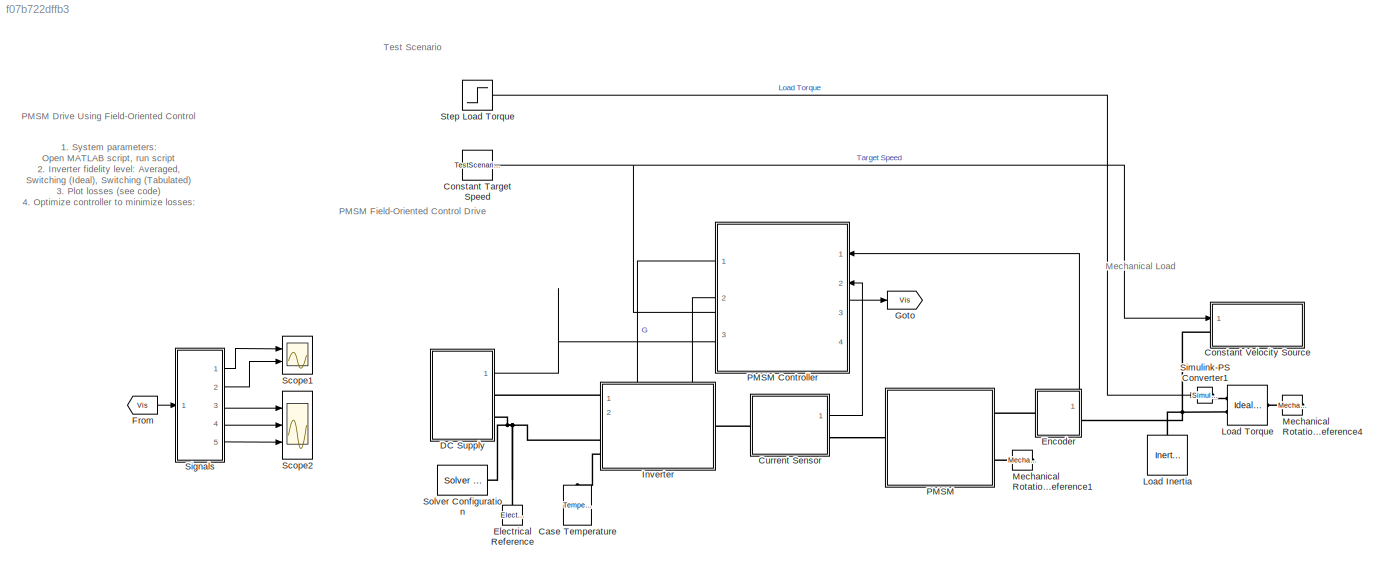
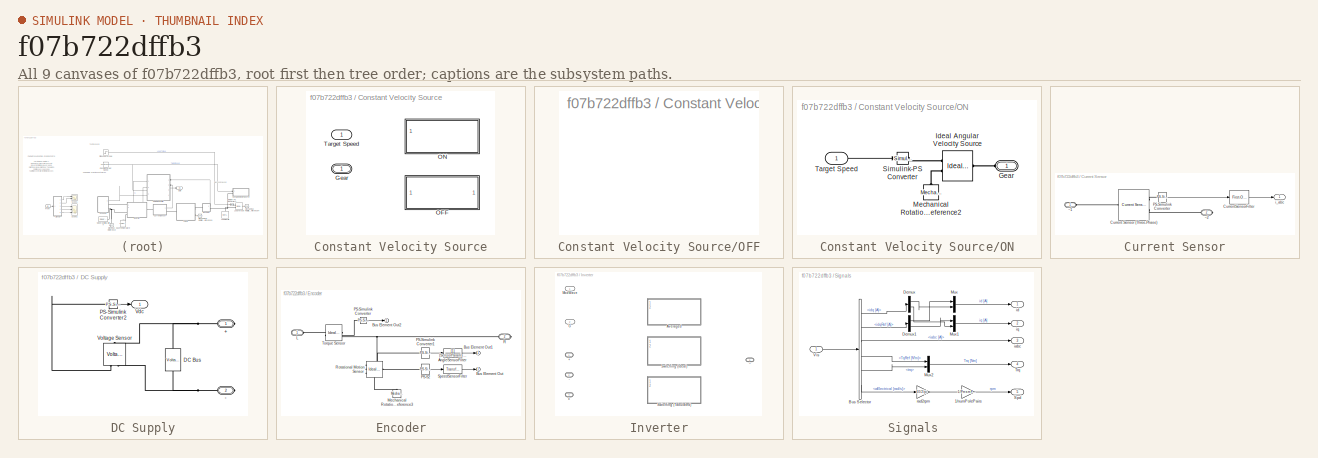
[diagram: thumbnail index - all 9 canvases of the model, root first then tree order]
MODEL slx_f07b722dffb3
KIND model
CONFIG AbsTol = 1e-3
CONFIG EnableMultiTasking = on
CONFIG FixedStep = auto
CONFIG MaxStep = 1e-3
CONFIG MinStep = auto
CONFIG PreLoadFcn = SystemParams;
CONFIG RelTol = 1e-3
CONFIG SampleTimeConstraint = Unconstrained
CONFIG SolverName = daessc
CONFIG StartTime = 0.0
CONFIG StopFcn = ee_addSimlogTimeStamp(bdroot)
CONFIG StopTime = 0.2
BLOCK [Reference] Case Temperature  REF=fl_lib/Thermal/Thermal Sources/Temperature Source
  NameLocation = right
  Ports = [0, 0, 0, 0, 0, 1]
  SourceBlock = fl_lib/Thermal/Thermal Sources/Temperature Source
  SourceProductBaseCode = SS
  SourceType = Temperature Source
BLOCK [Constant] Constant Target Speed
  SampleTime = ControllerParams.SampleTime
  Value = TestScenarioParams.RotorSpeedRef_rpm
BLOCK [SubSystem] Constant Velocity Source
  LabelModeActiveChoice = OFF
  Ports = [1, 0, 0, 0, 0, 1]
  RequestExecContextInheritance = off
  Variant = on
  VariantControlMode = label
BLOCK [PMIOPort] Constant Velocity Source/Gear
  Side = Left
BLOCK [SubSystem] Constant Velocity Source/OFF
  Ports = []
  RequestExecContextInheritance = off
  VariantControl = OFF
BLOCK [SubSystem] Constant Velocity Source/ON
  Ports = [1, 0, 0, 0, 0, 1]
  RequestExecContextInheritance = off
  VariantControl = ON
BLOCK [PMIOPort] Constant Velocity Source/ON/Gear
  Side = Left
BLOCK [Reference] Constant Velocity Source/ON/Ideal Angular Velocity Source  REF=fl_lib/Mechanical/Mechanical Sources/Ideal Angular
Velocity Source
  Ports = [0, 0, 0, 0, 0, 1, 2]
  SourceBlock = fl_lib/Mechanical/Mechanical Sources/Ideal Angular\nVelocity Source
  SourceProductBaseCode = SS
  SourceType = Ideal Angular\nVelocity Source
BLOCK [Reference] Constant Velocity Source/ON/Mechanical Rotational Reference2  REF=fl_lib/Mechanical/Rotational Elements/Mechanical
Rotational Reference
  NameLocation = right
  Ports = [0, 0, 0, 0, 0, 1]
  SourceBlock = fl_lib/Mechanical/Rotational Elements/Mechanical\nRotational Reference
  SourceProductBaseCode = SS
  SourceType = Mechanical\nRotational Reference
BLOCK [Reference] Constant Velocity Source/ON/Simulink-PS Converter  REF=nesl_utility/Simulink-PS
Converter
  Ports = [1, 0, 0, 0, 0, 0, 1]
  SourceBlock = nesl_utility/Simulink-PS\nConverter
  SourceProductBaseCode = PW,SS
  SourceType = Simulink-PS\nConverter
BLOCK [Inport] Constant Velocity Source/ON/Target Speed
BLOCK [Inport] Constant Velocity Source/Target Speed
BLOCK [SubSystem] Current Sensor
  Ports = [0, 1, 0, 0, 0, 1, 1]
  RequestExecContextInheritance = off
BLOCK [Reference] Current Sensor/Current Sensor (Three-Phase)  REF=ee_lib/Sensors &
Transducers/Current Sensor
(Three-Phase)
  Ports = [0, 0, 0, 0, 0, 1, 2]
  SourceBlock = ee_lib/Sensors &\nTransducers/Current Sensor\n(Three-Phase)
  SourceProductBaseCode = PS
  SourceType = Current Sensor\n(Three-Phase)
BLOCK [Reference] Current Sensor/CurrentSensorFilter  REF=spsFirstOrderFilterLib/First-Order
Filter
  Ports = [1, 1]
  SourceBlock = spsFirstOrderFilterLib/First-Order\nFilter
  SourceProductBaseCode = PS
  SourceType = First-Order Filter
BLOCK [Reference] Current Sensor/PS-Simulink Converter  REF=nesl_utility/PS-Simulink
Converter
  Ports = [0, 1, 0, 0, 0, 1]
  SourceBlock = nesl_utility/PS-Simulink\nConverter
  SourceProductBaseCode = PW,SS
  SourceType = PS-Simulink\nConverter
BLOCK [Outport] Current Sensor/i_abc
BLOCK [PMIOPort] Current Sensor/~1
  NameLocation = top
  Side = Left
BLOCK [PMIOPort] Current Sensor/~2
  Port = 2
  Side = Right
BLOCK [SubSystem] DC Supply
  Ports = [0, 1, 0, 0, 0, 0, 2]
  RequestExecContextInheritance = off
BLOCK [PMIOPort] DC Supply/+
  Side = Right
BLOCK [PMIOPort] DC Supply/-
  Port = 2
  Side = Right
BLOCK [Reference] DC Supply/DC Bus  REF=ee_lib/Sources/Voltage Source
  NameLocation = right
  Ports = [0, 0, 0, 0, 0, 1, 1]
  SourceBlock = ee_lib/Sources/Voltage Source
  SourceProductBaseCode = PS
  SourceType = Voltage Source
BLOCK [Reference] DC Supply/PS-Simulink Converter2  REF=nesl_utility/PS-Simulink
Converter
  AttributesFormatString = %<Unit>
  Ports = [0, 1, 0, 0, 0, 1]
  SourceBlock = nesl_utility/PS-Simulink\nConverter
  SourceProductBaseCode = PW,SS
  SourceType = PS-Simulink\nConverter
BLOCK [Outport] DC Supply/Vdc
BLOCK [Reference] DC Supply/Voltage Sensor  REF=fl_lib/Electrical/Electrical Sensors/Voltage Sensor
  NameLocation = left
  Ports = [0, 0, 0, 0, 0, 1, 2]
  SourceBlock = fl_lib/Electrical/Electrical Sensors/Voltage Sensor
  SourceProductBaseCode = SS
  SourceType = Voltage Sensor
BLOCK [Reference] Electrical Reference  REF=fl_lib/Electrical/Electrical Elements/Electrical Reference
  NameLocation = right
  Ports = [0, 0, 0, 0, 0, 1]
  SourceBlock = fl_lib/Electrical/Electrical Elements/Electrical Reference
  SourceProductBaseCode = SS
  SourceType = Electrical Reference
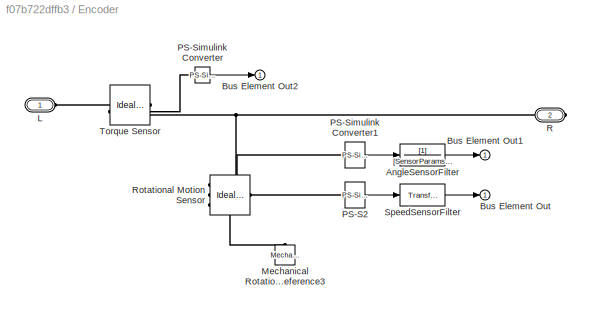
BLOCK [SubSystem] Encoder
  PortSchema = {"entries":[{"content":{"sides":[{"content":{"connectorIds":["LConn1"]},"type":"ConnectorPlacement.EquallySpacedRectSide","uuid":"cfad22f7-4ca5-4e38-a161-f69c3faf7447"},{"content":{"connectorIds":["RConn1"],"side":"RIGHT"},"type":"ConnectorPlacement.EquallySpacedRectSide","uuid":"720e2ecf-f383-4111-97af-41d99d9b093d"},{"content":{"connectorIds":["Out1"],"side":"TOP"},"type":"ConnectorPlacement.Equ...<+251ch>
  Ports = [0, 1, 0, 0, 0, 1, 1]
  RequestExecContextInheritance = off
BLOCK [TransferFcn] Encoder/AngleSensorFilter
  Denominator = [SensorParams.PositionSensor.TimeConstant  1]
BLOCK [Outport] Encoder/Bus Element Out
  AttributesFormatString = %<Unit>
BLOCK [Outport] Encoder/Bus Element Out1
  AttributesFormatString = %<Unit>
BLOCK [Outport] Encoder/Bus Element Out2
  AttributesFormatString = %<Unit>
BLOCK [PMIOPort] Encoder/L
  Side = Left
BLOCK [Reference] Encoder/Mechanical Rotational Reference3  REF=fl_lib/Mechanical/Rotational Elements/Mechanical
Rotational Reference
  NameLocation = right
  Ports = [0, 0, 0, 0, 0, 1]
  SourceBlock = fl_lib/Mechanical/Rotational Elements/Mechanical\nRotational Reference
  SourceProductBaseCode = SS
  SourceType = Mechanical\nRotational Reference
BLOCK [Reference] Encoder/PS-S2  REF=nesl_utility/PS-Simulink
Converter
  AttributesFormatString = %<Unit>
  Ports = [0, 1, 0, 0, 0, 1]
  SourceBlock = nesl_utility/PS-Simulink\nConverter
  SourceProductBaseCode = PW,SS
  SourceType = PS-Simulink\nConverter
BLOCK [Reference] Encoder/PS-Simulink Converter  REF=nesl_utility/PS-Simulink
Converter
  Ports = [0, 1, 0, 0, 0, 1]
  SourceBlock = nesl_utility/PS-Simulink\nConverter
  SourceProductBaseCode = PW,SS
  SourceType = PS-Simulink\nConverter
BLOCK [Reference] Encoder/PS-Simulink Converter1  REF=nesl_utility/PS-Simulink
Converter
  AttributesFormatString = %<Unit>
  Ports = [0, 1, 0, 0, 0, 1]
  SourceBlock = nesl_utility/PS-Simulink\nConverter
  SourceProductBaseCode = PW,SS
  SourceType = PS-Simulink\nConverter
BLOCK [PMIOPort] Encoder/R
  Port = 2
  Side = Right
BLOCK [Reference] Encoder/Rotational Motion Sensor  REF=fl_lib/Mechanical/Mechanical Sensors/Ideal Rotational
Motion Sensor
  Ports = [0, 0, 0, 0, 0, 1, 3]
  SourceBlock = fl_lib/Mechanical/Mechanical Sensors/Ideal Rotational\nMotion Sensor
  SourceProductBaseCode = SS
  SourceType = Ideal Rotational\nMotion Sensor
BLOCK [Reference] Encoder/SpeedSensorFilter  REF=simulink_extras/Additional
Linear/Transfer Fcn
(with initial outputs)
  Ports = [1, 1]
  SourceBlock = simulink_extras/Additional\nLinear/Transfer Fcn\n(with initial outputs)
  SourceProductBaseCode = SL
  SourceType = Transfer Function with Initial Outputs
BLOCK [Reference] Encoder/Torque Sensor  REF=fl_lib/Mechanical/Mechanical Sensors/Ideal Torque Sensor
  Ports = [0, 0, 0, 0, 0, 1, 2]
  SourceBlock = fl_lib/Mechanical/Mechanical Sensors/Ideal Torque Sensor
  SourceProductBaseCode = SS
  SourceType = Ideal Torque Sensor
BLOCK [From] From
  GotoTag = Vis
BLOCK [Goto] Goto
  GotoTag = Vis
BLOCK [SubSystem] Inverter
  LabelModeActiveChoice = Averaged
  PortSchema = {"entries":[{"content":{"sides":[{"content":{"connectorIds":["LConn1","LConn2","LConn3"]},"type":"ConnectorPlacement.EquallySpacedRectSide","uuid":"a5731130-aa3c-45df-b5d7-9e85c7611628"},{"content":{"connectorIds":["RConn1"],"side":"RIGHT"},"type":"ConnectorPlacement.EquallySpacedRectSide","uuid":"36730f5a-16d9-4cf3-b45d-c3a376589b1d"},{"content":{"connectorIds":["In1","In2"],"side":"TOP"},"type":...<+274ch>
  Ports = [2, 0, 0, 0, 0, 3, 1]
  RequestExecContextInheritance = off
  Variant = on
  VariantControl = Choice
  VariantControlMode = label
BLOCK [PMIOPort] Inverter/+
  Side = Left
  Tag = PMCPort
BLOCK [PMIOPort] Inverter/-
  Port = 2
  Side = Left
  Tag = PMCPort
BLOCK [SubSystem] Inverter/Averaged
  PortSchema = {"entries":[{"content":{"sides":[{"content":{"connectorIds":["LConn1","LConn2","LConn3"]},"type":"ConnectorPlacement.EquallySpacedRectSide","uuid":"b77a7b87-9b1e-4a17-b6f6-338fca9d9cfe"},{"content":{"connectorIds":["RConn1"],"side":"RIGHT"},"type":"ConnectorPlacement.EquallySpacedRectSide","uuid":"84d00c63-1b9f-4e1b-a87e-6ae3bc20b0e8"},{"content":{"connectorIds":["In1","In2"],"side":"TOP"},"type":...<+274ch>  <repeated x3 — deduplicated; at blocks: Averaged, Switching (Ideal), Switching (Tabulated)>
  Ports = [2, 0, 0, 0, 0, 3, 1]
  ReferencedSubsystem = AveragedInverter
  RequestExecContextInheritance = off
  VariantControl = Averaged
BLOCK [Inport] Inverter/G
  Port = 2
BLOCK [Inport] Inverter/ModWave
BLOCK [SubSystem] Inverter/Switching (Ideal)
  Ports = [2, 0, 0, 0, 0, 3, 1]
  ReferencedSubsystem = SwitchingInverterIdeal
  RequestExecContextInheritance = off
  VariantControl = Switching (Ideal)
BLOCK [SubSystem] Inverter/Switching (Tabulated)
  Ports = [2, 0, 0, 0, 0, 3, 1]
  ReferencedSubsystem = SwitchingInverterTabulated
  RequestExecContextInheritance = off
  VariantControl = Switching (Tabulated)
BLOCK [PMIOPort] Inverter/c
  Port = 4
  Side = Left
  Tag = PMCPort
BLOCK [PMIOPort] Inverter/~
  Port = 3
  Side = Right
  Tag = PMCPort
BLOCK [Reference] Load Inertia  REF=fl_lib/Mechanical/Rotational Elements/Inertia
  NameLocation = right
  Ports = [0, 0, 0, 0, 0, 1]
  SourceBlock = fl_lib/Mechanical/Rotational Elements/Inertia
  SourceProductBaseCode = SS
  SourceType = Inertia
BLOCK [Reference] Load Torque  REF=fl_lib/Mechanical/Mechanical Sources/Ideal Torque Source
  Ports = [0, 0, 0, 0, 0, 1, 2]
  SourceBlock = fl_lib/Mechanical/Mechanical Sources/Ideal Torque Source
  SourceProductBaseCode = SS
  SourceType = Ideal Torque Source
BLOCK [Reference] Mechanical Rotational Reference1  REF=fl_lib/Mechanical/Rotational Elements/Mechanical
Rotational Reference
  NameLocation = top
  Ports = [0, 0, 0, 0, 0, 1]
  SourceBlock = fl_lib/Mechanical/Rotational Elements/Mechanical\nRotational Reference
  SourceProductBaseCode = SS
  SourceType = Mechanical\nRotational Reference
BLOCK [Reference] Mechanical Rotational Reference4  REF=fl_lib/Mechanical/Rotational Elements/Mechanical
Rotational Reference
  NameLocation = top
  Ports = [0, 0, 0, 0, 0, 1]
  SourceBlock = fl_lib/Mechanical/Rotational Elements/Mechanical\nRotational Reference
  SourceProductBaseCode = SS
  SourceType = Mechanical\nRotational Reference
BLOCK [SubSystem] PMSM
  Ports = [0, 0, 0, 0, 0, 1, 2]
  ReferencedSubsystem = PMSM
  RequestExecContextInheritance = off
BLOCK [SubSystem] PMSM Controller
  ControllerParameters = ControllerParams
  PortSchema = {"entries":[{"content":{"sides":[{"content":{"connectorIds":["In1","Out3","In2"]},"type":"ConnectorPlacement.EquallySpacedRectSide","uuid":"4c32f1a4-bd89-4f05-8eaa-e2dd24abb257"},{"content":{"connectorIds":["In3","In4","Out1","Out2"],"side":"RIGHT"},"type":"ConnectorPlacement.EquallySpacedRectSide","uuid":"3a536089-b16f-4be7-9641-6e190c11a3d2"},{"content":{"connectorIds":[],"side":"TOP"},"type":"C...<+272ch>
  Ports = [4, 3]
  ReferencedSubsystem = PMSM_Controller
  RequestExecContextInheritance = off
  VariantControl = Averaged
BLOCK [Scope] Scope1
  Floating = off
  NumInputPorts = 2
  Ports = [2]
  ScopeSpecificationString = Simulink.scopes.TimeScopeBlockCfg('CurrentConfiguration', extmgr.ConfigurationSet(extmgr.Configuration('Core','General UI',true),extmgr.Configuration('Core','Source UI',true),extmgr.Configuration('Sources','WiredSimulink',true,'DataLoggingVariableName','ScopeData1'),extmgr.Configuration('Visuals','Time Domain',true,'SerializedDisplays',{struct('MinYLimReal','-92.75344','MaxYLimReal','258.19794','Y...<+2175ch>
BLOCK [Scope] Scope2
  Floating = off
  NumInputPorts = 3
  Ports = [3]
  ScopeSpecificationString = Simulink.scopes.TimeScopeBlockCfg('CurrentConfiguration', extmgr.ConfigurationSet(extmgr.Configuration('Core','General UI',true),extmgr.Configuration('Core','Source UI',true),extmgr.Configuration('Sources','WiredSimulink',true,'DataLoggingVariableName','ScopeData2'),extmgr.Configuration('Visuals','Time Domain',true,'SerializedDisplays',{struct('MinYLimReal','-358.62364','MaxYLimReal','355.01051','...<+2872ch>
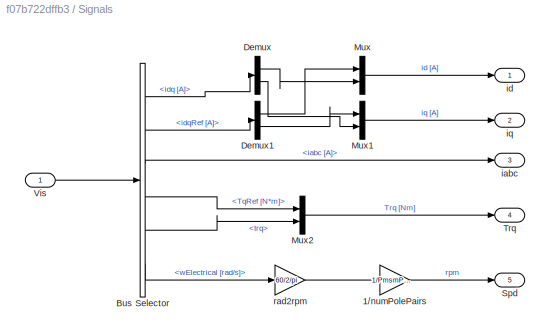
BLOCK [SubSystem] Signals 
  Ports = [1, 5]
  RequestExecContextInheritance = off
BLOCK [Gain] Signals /1//numPolePairs
  Gain = 1/PmsmParams.NumPolePairs
BLOCK [BusSelector] Signals /Bus Selector
  OutputSignals = Vis.idq [A],Vis.idqRef [A],Vis.iabc [A],Vis.TqRef [N*m],trq,Vis.wElectrical [rad/s]
  Ports = [1, 6]
BLOCK [Demux] Signals /Demux
  Outputs = 2
  Ports = [1, 2]
BLOCK [Demux] Signals /Demux1
  Outputs = 2
  Ports = [1, 2]
BLOCK [Mux] Signals /Mux
  DisplayOption = bar
  Inputs = 2
  Ports = [2, 1]
BLOCK [Mux] Signals /Mux1
  DisplayOption = bar
  Inputs = 2
  Ports = [2, 1]
BLOCK [Mux] Signals /Mux2
  DisplayOption = bar
  Inputs = 2
  Ports = [2, 1]
BLOCK [Outport] Signals /Spd
  Port = 5
  VectorParamsAs1DForOutWhenUnconnected = off
BLOCK [Outport] Signals /Trq
  Port = 4
  VectorParamsAs1DForOutWhenUnconnected = off
BLOCK [Inport] Signals /Vis
BLOCK [Outport] Signals /iabc
  Port = 3
  VectorParamsAs1DForOutWhenUnconnected = off
BLOCK [Outport] Signals /id
BLOCK [Outport] Signals /iq
  Port = 2
BLOCK [Gain] Signals /rad2rpm
  Gain = 60/2/pi
BLOCK [Reference] Simulink-PS Converter1  REF=nesl_utility/Simulink-PS
Converter
  AttributesFormatString = %<Unit>
  Ports = [1, 0, 0, 0, 0, 0, 1]
  SourceBlock = nesl_utility/Simulink-PS\nConverter
  SourceProductBaseCode = PW,SS
  SourceType = Simulink-PS\nConverter
BLOCK [Reference] Solver Configuration  REF=nesl_utility/Solver
Configuration
  AttributesFormatString = Local solver %<UseLocalSolver>
  Ports = [0, 0, 0, 0, 0, 0, 1]
  SourceBlock = nesl_utility/Solver\nConfiguration
  SourceProductBaseCode = PW,SS
  SourceType = Solver\nConfiguration
  Tag = ModelFeatures
BLOCK [Step] Step Load Torque
  After = TestScenarioParams.StepTorqueAfter_Nm
  SampleTime = 0
  Time = 0.1
ANNOTATION (root): 1. System parameters: Open MATLAB script , run script 2. Inverter fidelity level: Averaged , Switching (Ideal) , Switching (Tabulated) 3. Plot losses ( see code ) 4. Optimize controller to minimize losses: Open MATLAB livescript , run script , load original , load optimized 5. Plot frequency response (computationally intensive): Open MATLAB livescript 6. Explore simulation results using sscexplore
ANNOTATION (root): Mechanical Load
ANNOTATION (root): PMSM Drive Using Field-Oriented Control
ANNOTATION (root): PMSM Field-Oriented Control Drive
ANNOTATION (root): Test Scenario
NET Constant Target Speed:1 -> Constant Velocity Source:1, PMSM Controller:3
LINE Constant Velocity Source/ON/Target Speed:1 -> Constant Velocity Source/ON/Simulink-PS Converter:1
LINE Current Sensor/CurrentSensorFilter:1 -> Current Sensor/i_abc:1
LINE Current Sensor/PS-Simulink Converter:1 -> Current Sensor/CurrentSensorFilter:1
LINE Current Sensor:1 -> PMSM Controller:2
LINE DC Supply/PS-Simulink Converter2:1 -> DC Supply/Vdc:1
LINE DC Supply:1 -> PMSM Controller:4
LINE Encoder/AngleSensorFilter:1 -> Encoder/Bus Element Out1:1
LINE Encoder/PS-S2:1 -> Encoder/SpeedSensorFilter:1
LINE Encoder/PS-Simulink Converter1:1 -> Encoder/AngleSensorFilter:1
LINE Encoder/PS-Simulink Converter:1 -> Encoder/Bus Element Out2:1
LINE Encoder/SpeedSensorFilter:1 -> Encoder/Bus Element Out:1
LINE Encoder:1 -> PMSM Controller:1
LINE From:1 -> Signals :1
LINE PMSM Controller:1 -> Inverter:1
LINE PMSM Controller:2 -> Inverter:2
LINE PMSM Controller:3 -> Goto:1
LINE Signals /1//numPolePairs:1 -> Signals /Spd:1
LINE Signals /Bus Selector:1 -> Signals /Demux:1
LINE Signals /Bus Selector:2 -> Signals /Demux1:1
LINE Signals /Bus Selector:3 -> Signals /iabc:1
LINE Signals /Bus Selector:4 -> Signals /Mux2:1
LINE Signals /Bus Selector:5 -> Signals /Mux2:2
LINE Signals /Bus Selector:6 -> Signals /rad2rpm:1
LINE Signals /Demux1:1 -> Signals /Mux:1
LINE Signals /Demux1:2 -> Signals /Mux1:1
LINE Signals /Demux:1 -> Signals /Mux:2
LINE Signals /Demux:2 -> Signals /Mux1:2
LINE Signals /Mux1:1 -> Signals /iq:1
LINE Signals /Mux2:1 -> Signals /Trq:1
LINE Signals /Mux:1 -> Signals /id:1
LINE Signals /Vis:1 -> Signals /Bus Selector:1
LINE Signals /rad2rpm:1 -> Signals /1//numPolePairs:1
LINE Signals :1 -> Scope1:1
LINE Signals :2 -> Scope1:2
LINE Signals :3 -> Scope2:1
LINE Signals :4 -> Scope2:2
LINE Signals :5 -> Scope2:3
LINE Step Load Torque:1 -> Simulink-PS Converter1:1
PLINE Case Temperature:LConn1 -- Inverter:LConn3
PLINE Constant Velocity Source/ON/Gear:RConn1 -- Constant Velocity Source/ON/Ideal Angular Velocity Source:LConn1
PLINE Constant Velocity Source/ON/Ideal Angular Velocity Source:RConn1 -- Constant Velocity Source/ON/Simulink-PS Converter:RConn1
PLINE Constant Velocity Source/ON/Ideal Angular Velocity Source:RConn2 -- Constant Velocity Source/ON/Mechanical Rotational Reference2:LConn1
PNET net1: Constant Velocity Source:LConn1 -- Encoder:RConn1 -- Load Inertia:LConn1 -- Load Torque:RConn2
PLINE Current Sensor/Current Sensor (Three-Phase):LConn1 -- Current Sensor/~1:RConn1
PLINE Current Sensor/Current Sensor (Three-Phase):RConn1 -- Current Sensor/PS-Simulink Converter:LConn1
PLINE Current Sensor/Current Sensor (Three-Phase):RConn2 -- Current Sensor/~2:RConn1
PLINE Current Sensor:LConn1 -- Inverter:RConn1
PLINE Current Sensor:RConn1 -- PMSM:LConn1
PNET net2: DC Supply/+:RConn1 -- DC Supply/DC Bus:LConn1 -- DC Supply/Voltage Sensor:LConn1
PNET net3: DC Supply/-:RConn1 -- DC Supply/DC Bus:RConn1 -- DC Supply/Voltage Sensor:RConn2
PLINE DC Supply/PS-Simulink Converter2:LConn1 -- DC Supply/Voltage Sensor:RConn1
PLINE DC Supply:RConn1 -- Inverter:LConn1
PNET net4: DC Supply:RConn2 -- Electrical Reference:LConn1 -- Inverter:LConn2 -- Solver Configuration:RConn1
PLINE Encoder/L:RConn1 -- Encoder/Torque Sensor:LConn1
PLINE Encoder/Mechanical Rotational Reference3:LConn1 -- Encoder/Rotational Motion Sensor:RConn1
PLINE Encoder/PS-S2:LConn1 -- Encoder/Rotational Motion Sensor:RConn2
PLINE Encoder/PS-Simulink Converter1:LConn1 -- Encoder/Rotational Motion Sensor:RConn3
PLINE Encoder/PS-Simulink Converter:LConn1 -- Encoder/Torque Sensor:RConn2
PNET net5: Encoder/R:RConn1 -- Encoder/Rotational Motion Sensor:LConn1 -- Encoder/Torque Sensor:RConn1
PLINE Encoder:LConn1 -- PMSM:RConn1
PLINE Load Torque:LConn1 -- Mechanical Rotational Reference4:LConn1
PLINE Load Torque:RConn1 -- Simulink-PS Converter1:RConn1
PLINE Mechanical Rotational Reference1:LConn1 -- PMSM:RConn2
note: NET lines group one-source signal fan-out (src -> all destinations, sorted); 1:1 wires keep LINE; PNET lines group multi-terminal physical nets as a canonical sorted terminal list (undirected conserving connections); 2-terminal nets keep the pairwise PLINE form
